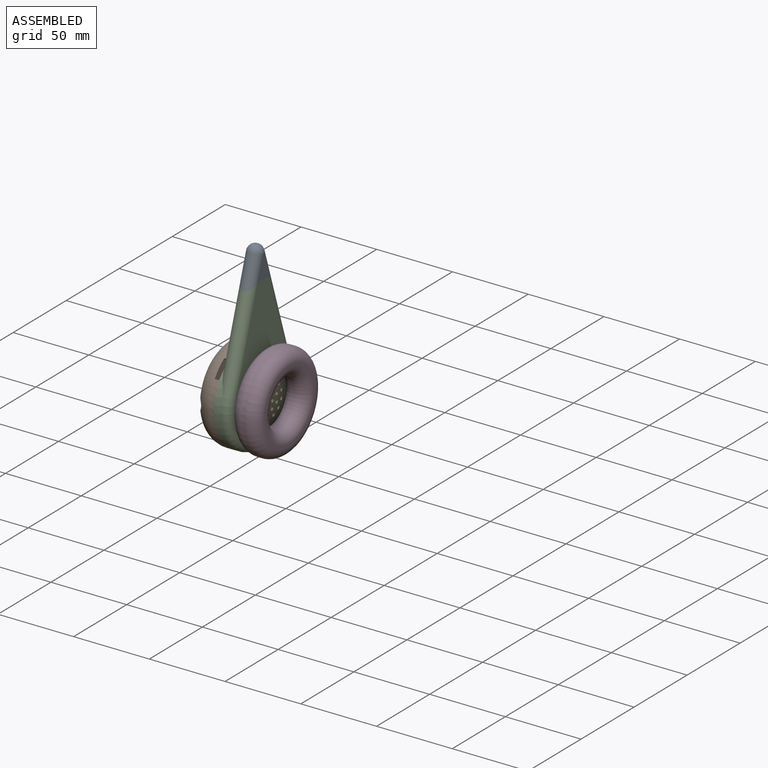
[diagram: assembled view]
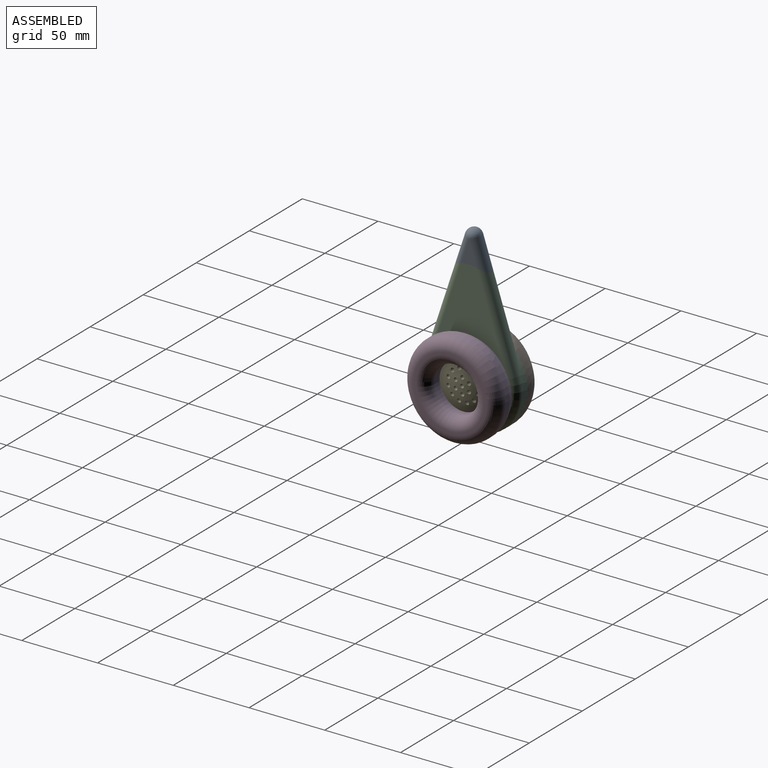
[diagram: assembled view, second angle]
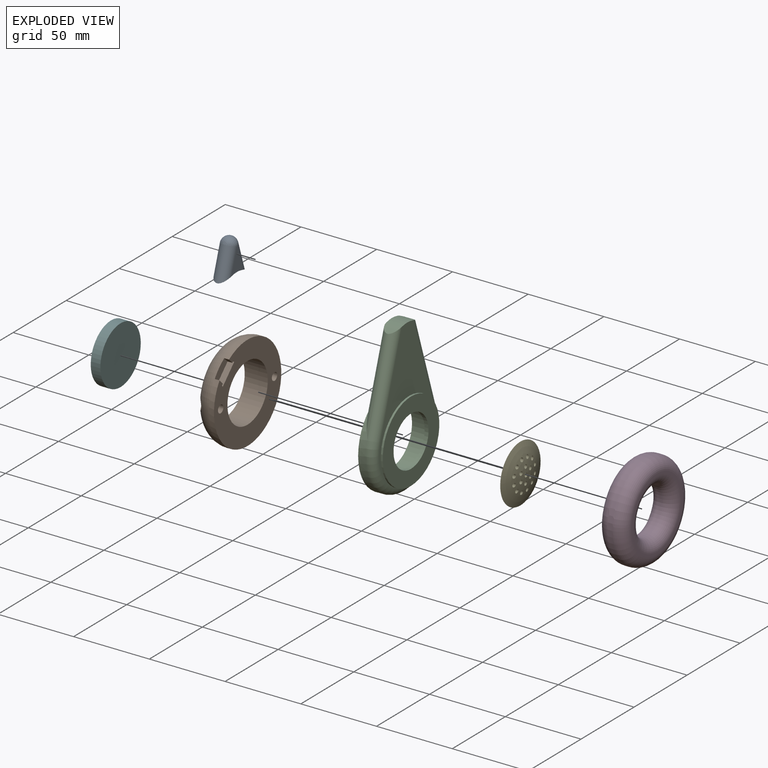
[diagram: exploded view]
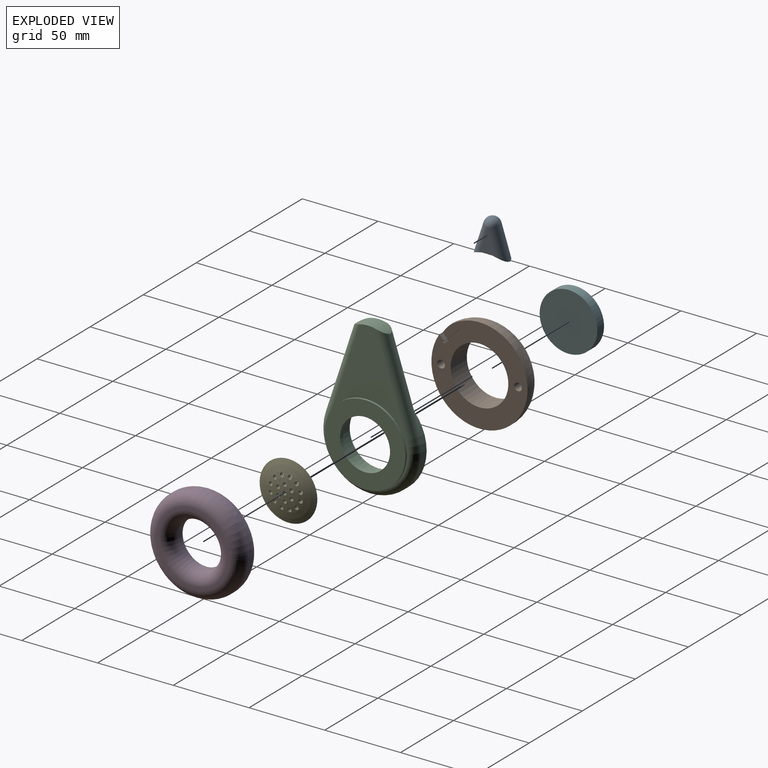
[diagram: exploded view, second angle]
ASSEMBLY  parts=6 mates=5
PART A: 6 faces, bbox 10.2x23.1x25.5 mm
  f0: cylinder r=20.32mm len=23.09mm, axis (1,0,0), area 216.2mm2, adj f1,f2,f3,f5
  f1: plane 15.93x10.48mm, normal (-1,0,0), area 78.6mm2, adj f0,f3,f5
  f2: plane 15.93x10.48mm, normal (1,0,0), area 78.6mm2, adj f0,f3,f5
  f3: cylinder r=5.08mm len=22.01mm, axis (0,0.31,0.95), area 312.1mm2, adj f0,f1,f2,f4
  f4: sphere r=5.08mm, area 129.3mm2, adj f3,f5
  f5: cylinder r=5.08mm len=22.01mm, axis (0,0.31,-0.95), area 312.1mm2, adj f0,f1,f2,f4
PART B: 18 faces, bbox 21.7x68.7x68.7 mm
  f0: torus R=19.05mm, axis (1,0,0), area 3283.8mm2, adj f1,f2,f4,f5,f6,f10,f13
  f1: cylinder r=19.05mm len=38.1mm, axis (1,0,0), area 1824.1mm2, adj f0,f7
  f2: plane 12.11x12.11mm, normal (1,0,0), area 61.6mm2, adj f0,f4,f5,f17
  f3: plane 10.78x10.78mm, normal (0,-0.71,0.71), area 67.7mm2, adj f7,f14,f15,f16
  f4: plane 3.18x3.14mm, normal (0,0.71,0.71), area 14.1mm2, adj f0,f2,f6,f7,f17
  f5: plane 3.18x3.14mm, normal (0,-0.71,-0.71), area 14.1mm2, adj f0,f2,f6,f7,f17
  f6: cylinder r=31.75mm len=63.5mm, axis (1,0,0), area 474.2mm2, adj f0,f4,f5,f7
  f7: plane 63.5x63.5mm, normal (1,0,0), area 1905.1mm2, adj f1,f3,f4,f5,f6,f8,f11,f14
  f8: cylinder r=2.54mm len=8.89mm, axis (-1,0,0), area 141.9mm2, adj f7,f9
  f9: plane 7.62x7.62mm, normal (-1,0,0), area 25.3mm2, adj f8,f10
  f10: cylinder r=3.81mm len=7.62mm, axis (-1,0,0), area 97.9mm2, adj f0,f9
  f11: cylinder r=2.54mm len=8.89mm, axis (-1,0,0), area 141.9mm2, adj f7,f12
  f12: plane 7.62x7.62mm, normal (-1,0,0), area 25.3mm2, adj f11,f13
  f13: cylinder r=3.81mm len=7.62mm, axis (-1,0,0), area 97.9mm2, adj f0,f12
  f14: plane 4.45x0.9mm, normal (0,-0.71,-0.71), area 5.6mm2, adj f3,f7,f15,f17
  f15: plane 11.67x11.67mm, normal (1,0,0), area 19.4mm2, adj f3,f14,f16,f17
  f16: plane 4.45x0.9mm, normal (0,0.71,0.71), area 5.6mm2, adj f3,f7,f15,f17
  f17: plane 10.78x10.78mm, normal (0,0.71,-0.71), area 27.4mm2, adj f2,f4,f5,f7,f14,f15,f16
PART C: 17 faces, bbox 12.7x68.7x105.4 mm
  f0: cylinder r=31.75mm len=63.5mm, axis (1,0,0), area 680.8mm2, adj f3,f5,f6,f7
  f1: cylinder r=19.05mm len=38.1mm, axis (1,0,0), area 1216.1mm2, adj f3,f12
  f2: cylinder r=20.32mm len=23.09mm, axis (1,0,0), area 216.2mm2, adj f3,f4,f5,f6
  f3: plane 101.85x63.5mm, normal (-1,0,0), area 2925.4mm2, adj f0,f1,f2,f5,f6,f8,f10
  f4: plane 96.77x53.34mm, normal (1,0,0), area 1875.1mm2, adj f2,f5,f6,f7,f16
  f5: cylinder r=5.08mm len=62.67mm, axis (0,0.31,0.95), area 907.8mm2, adj f0,f2,f3,f4,f7
  f6: cylinder r=5.08mm len=62.67mm, axis (0,0.31,-0.95), area 907.8mm2, adj f0,f2,f3,f4,f7
  f7: torus R=26.67mm, axis (1,0,0), area 901.3mm2, adj f0,f4,f5,f6
  f8: cylinder r=2.54mm len=7.62mm, axis (-1,0,0), area 121.6mm2, adj f3,f9
  f9: cone r=0mm half-angle=59deg, axis (-1,0,0), area 23.6mm2, adj f8
  f10: cylinder r=2.54mm len=7.62mm, axis (-1,0,0), area 121.6mm2, adj f3,f11
  f11: cone r=0mm half-angle=59deg, axis (-1,0,0), area 23.6mm2, adj f10
  f12: plane 38.1x38.1mm, normal (-1,0,0), area 283.8mm2, adj f1,f13
  f13: cylinder r=16.51mm len=33.02mm, axis (-1,0,0), area 263.5mm2, adj f12,f14
  f14: plane 53.34x53.34mm, normal (1,0,0), area 1378.2mm2, adj f13,f15
  f15: cylinder r=26.67mm len=53.34mm, axis (-1,0,0), area 212.8mm2, adj f14,f16
  f16: cone r=26.67mm half-angle=74.1deg, axis (1,0,0), area 710.1mm2, adj f4,f15
PART D: 11 faces, bbox 17.8x68.7x68.7 mm
  f0: plane 48.26x48.26mm, normal (1,0,0), area 227.4mm2, adj f1,f10
  f1: torus R=24.13mm, axis (-1,0,0), area 2179.6mm2, adj f0,f2
  f2: cylinder r=31.75mm len=63.5mm, axis (-1,0,0), area 506.7mm2, adj f1,f3
  f3: torus R=24.13mm, axis (-1,0,0), area 2179.6mm2, adj f2,f4
  f4: plane 48.26x48.26mm, normal (-1,0,0), area 227.4mm2, adj f3,f5
  f5: torus R=22.58mm, axis (-1,0,0), area 1062.7mm2, adj f4,f6
  f6: torus R=26.67mm, axis (-1,0,0), area 285.6mm2, adj f5,f7
  f7: plane 53.34x53.34mm, normal (-1,0,0), area 972.9mm2, adj f6,f8
  f8: torus R=20.04mm, axis (-1,0,0), area 842.6mm2, adj f7,f9
  f9: cylinder r=14.96mm len=29.92mm, axis (-1,0,0), area 238.8mm2, adj f8,f10
  f10: torus R=22.58mm, axis (-1,0,0), area 1333.4mm2, adj f0,f9
PART E: 21 faces, bbox 3.8x38.1x38.1 mm
  f0: sphere r=49.53mm, area 1088mm2, adj f1,f2,f3,f4,f5,f6,f7,f8
  f1: plane 38.1x38.1mm, normal (-1,0,0), area 1043.8mm2, adj f0,f2,f3,f4,f5,f6,f7,f8
  f2: cylinder r=1.27mm len=3.01mm, axis (-1,0,0), area 21.9mm2, adj f0,f1
  f3: cylinder r=1.27mm len=3.79mm, axis (-1,0,0), area 30.3mm2, adj f0,f1
  f4: cylinder r=1.27mm len=3.66mm, axis (-1,0,0), area 28.2mm2, adj f0,f1
  f5: cylinder r=1.27mm len=3.01mm, axis (-1,0,0), area 21.9mm2, adj f0,f1
  f6: cylinder r=1.27mm len=3.01mm, axis (-1,0,0), area 21.9mm2, adj f0,f1
  f7: cylinder r=1.27mm len=3.01mm, axis (-1,0,0), area 21.9mm2, adj f0,f1
  f8: cylinder r=1.27mm len=3.01mm, axis (-1,0,0), area 21.9mm2, adj f0,f1
  f9: cylinder r=1.27mm len=3.01mm, axis (-1,0,0), area 21.9mm2, adj f0,f1
  f10: cylinder r=1.27mm len=3.01mm, axis (-1,0,0), area 21.9mm2, adj f0,f1
  f11: cylinder r=1.27mm len=3.01mm, axis (-1,0,0), area 21.9mm2, adj f0,f1
  f12: cylinder r=1.27mm len=3.01mm, axis (-1,0,0), area 21.9mm2, adj f0,f1
  f13: cylinder r=1.27mm len=3.66mm, axis (-1,0,0), area 28.2mm2, adj f0,f1
  f14: cylinder r=1.27mm len=3.66mm, axis (-1,0,0), area 28.2mm2, adj f0,f1
  f15: cylinder r=1.27mm len=3.66mm, axis (-1,0,0), area 28.2mm2, adj f0,f1
  f16: cylinder r=1.27mm len=3.66mm, axis (-1,0,0), area 28.2mm2, adj f0,f1
  f17: cylinder r=1.27mm len=3.01mm, axis (-1,0,0), area 21.9mm2, adj f0,f1
  f18: cylinder r=1.27mm len=3.01mm, axis (-1,0,0), area 21.9mm2, adj f0,f1
  f19: cylinder r=1.27mm len=3.01mm, axis (-1,0,0), area 21.9mm2, adj f0,f1
  f20: cylinder r=1.27mm len=3.66mm, axis (-1,0,0), area 28.2mm2, adj f0,f1
PART F: 3 faces, bbox 6.4x38.1x38.1 mm
  f0: cylinder r=19.05mm len=38.1mm, axis (1,0,0), area 760.1mm2, adj f1,f2
  f1: plane 38.1x38.1mm, normal (-1,0,0), area 1140.1mm2, adj f0
  f2: plane 38.1x38.1mm, normal (1,0,0), area 1140.1mm2, adj f0
PLACE A at identity
PLACE B at identity
PLACE C at identity fixed
PLACE D rot(axis=(0,0,1),0deg) t=(0,0,0)mm
PLACE E rot(axis=(1,0,0),0deg) t=(0,0,0)mm
PLACE F at identity
MATE fastened C.f13 <-> E.f3  axis (1,0,0) through (2.54,0,0)mm
MATE fastened B.f1 <-> C.f1  axis (1,0,0) through (-10.16,0,0)mm
MATE fastened A.f0 <-> C.f2  axis (1,0,0) through (-5.08,0,49.78)mm
MATE fastened F.f0 <-> B.f0  axis (-1,0,0) through (-25.4,0,0)mm
MATE fastened D.f2 <-> E.f3  axis (-1,0,0) through (2.54,0,0)mm
